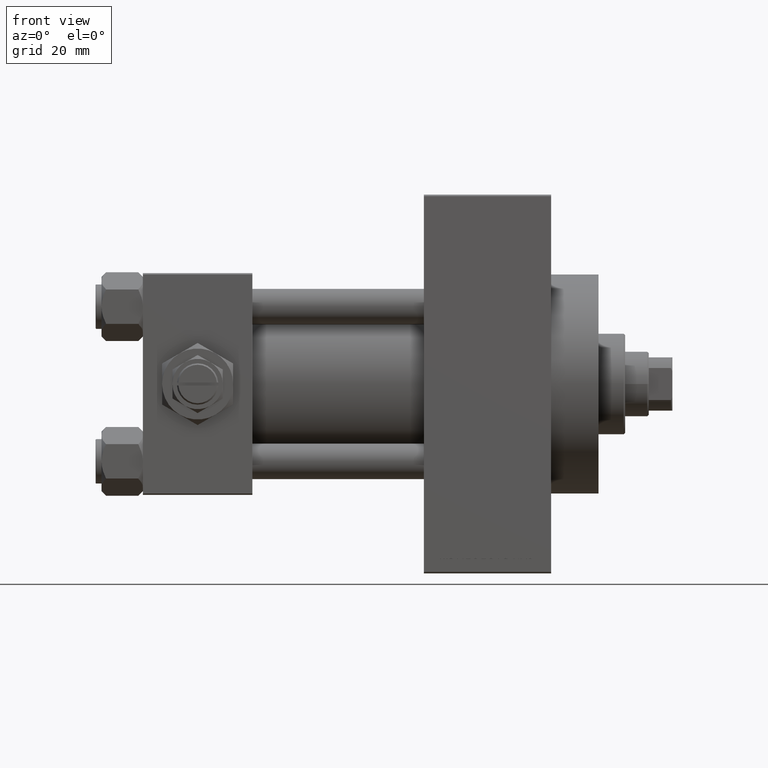
[diagram: clean part render]
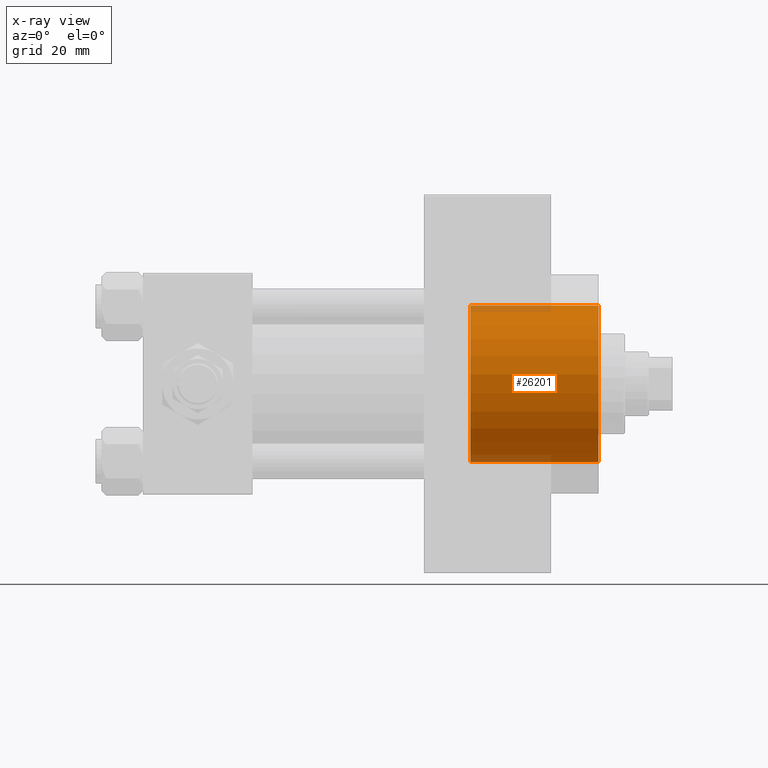
[diagram: x-ray — body ghosted, one internal face saturated and labeled with its STEP entity id]
A machine part, front view, then the same camera in x-ray: the body is ghosted and one INTERNAL B-rep face — a face not visible from any outside direction — is saturated and labeled: STEP entity #26201.
In plain terms, the highlighted cylindrical surface (partial cylindrical patch) has radius 26.5 mm, axis along (1, 0, 0).
Its self-contained STEP definition (entity closure, byte-faithful):
#1201 = CARTESIAN_POINT ( 'NONE',  ( 110.7400000000000375, 0.000000000000000000, -26.50000000000000355 ) ) ;
#1628 = DIRECTION ( 'NONE',  ( 0.000000000000000000, 0.000000000000000000, -1.000000000000000000 ) ) ;
#3769 = DIRECTION ( 'NONE',  ( 1.000000000000000000, -0.000000000000000000, -0.000000000000000000 ) ) ;
#4498 = CARTESIAN_POINT ( 'NONE',  ( 110.7400000000000375, 0.000000000000000000, 0.000000000000000000 ) ) ;
#5557 = VERTEX_POINT ( 'NONE', #25586 ) ;
#7215 = CIRCLE ( 'NONE', #35486, 26.50000000000000355 ) ;
#9451 = VERTEX_POINT ( 'NONE', #43634 ) ;
#11874 = EDGE_CURVE ( 'NONE', #9451, #37216, #20125, .T. ) ;
#12274 = DIRECTION ( 'NONE',  ( 1.000000000000000000, -0.000000000000000000, -0.000000000000000000 ) ) ;
#12912 = VECTOR ( 'NONE', #12274, 1000.000000000000000 ) ;
#14566 = CARTESIAN_POINT ( 'NONE',  ( 110.7400000000000375, 3.245314017740486554E-15, 26.50000000000000355 ) ) ;
#14710 = DIRECTION ( 'NONE',  ( 1.000000000000000000, 0.000000000000000000, 0.000000000000000000 ) ) ;
#17375 = CARTESIAN_POINT ( 'NONE',  ( 154.0000000000000284, 0.000000000000000000, -26.50000000000000355 ) ) ;
#17376 = EDGE_LOOP ( 'NONE', ( #30075, #41559, #36346, #23010 ) ) ;
#20125 = LINE ( 'NONE', #1201, #12912 ) ;
#20736 = DIRECTION ( 'NONE',  ( 1.000000000000000000, -0.000000000000000000, -0.000000000000000000 ) ) ;
#22563 = DIRECTION ( 'NONE',  ( 0.000000000000000000, 0.000000000000000000, -1.000000000000000000 ) ) ;
#22679 = FACE_OUTER_BOUND ( 'NONE', #17376, .T. ) ;
#23010 = ORIENTED_EDGE ( 'NONE', *, *, #11874, .F. ) ;
#23602 = VECTOR ( 'NONE', #20736, 1000.000000000000000 ) ;
#24958 = AXIS2_PLACEMENT_3D ( 'NONE', #4498, #3769, #37944 ) ;
#25586 = CARTESIAN_POINT ( 'NONE',  ( 154.0000000000000284, 3.245314017740486554E-15, 26.50000000000000355 ) ) ;
#26201 = ADVANCED_FACE ( 'NONE', ( #22679 ), #30548, .F. ) ;
#29411 = EDGE_CURVE ( 'NONE', #42993, #9451, #37633, .T. ) ;
#30075 = ORIENTED_EDGE ( 'NONE', *, *, #29411, .F. ) ;
#30548 = CYLINDRICAL_SURFACE ( 'NONE', #24958, 26.50000000000000355 ) ;
#32146 = AXIS2_PLACEMENT_3D ( 'NONE', #33638, #14710, #22563 ) ;
#33232 = EDGE_CURVE ( 'NONE', #42993, #5557, #42409, .T. ) ;
#33638 = CARTESIAN_POINT ( 'NONE',  ( 110.7400000000000375, 0.000000000000000000, 0.000000000000000000 ) ) ;
#35004 = CARTESIAN_POINT ( 'NONE',  ( 110.7400000000000375, 3.245314017740486554E-15, 26.50000000000000355 ) ) ;
#35486 = AXIS2_PLACEMENT_3D ( 'NONE', #41989, #46174, #1628 ) ;
#36346 = ORIENTED_EDGE ( 'NONE', *, *, #38911, .T. ) ;
#37216 = VERTEX_POINT ( 'NONE', #17375 ) ;
#37633 = CIRCLE ( 'NONE', #32146, 26.50000000000000355 ) ;
#37944 = DIRECTION ( 'NONE',  ( 0.000000000000000000, 0.000000000000000000, -1.000000000000000000 ) ) ;
#38911 = EDGE_CURVE ( 'NONE', #5557, #37216, #7215, .T. ) ;
#41559 = ORIENTED_EDGE ( 'NONE', *, *, #33232, .T. ) ;
#41989 = CARTESIAN_POINT ( 'NONE',  ( 154.0000000000000284, 0.000000000000000000, 0.000000000000000000 ) ) ;
#42409 = LINE ( 'NONE', #35004, #23602 ) ;
#42993 = VERTEX_POINT ( 'NONE', #14566 ) ;
#43634 = CARTESIAN_POINT ( 'NONE',  ( 110.7400000000000375, 0.000000000000000000, -26.50000000000000355 ) ) ;
#46174 = DIRECTION ( 'NONE',  ( 1.000000000000000000, 0.000000000000000000, 0.000000000000000000 ) ) ;